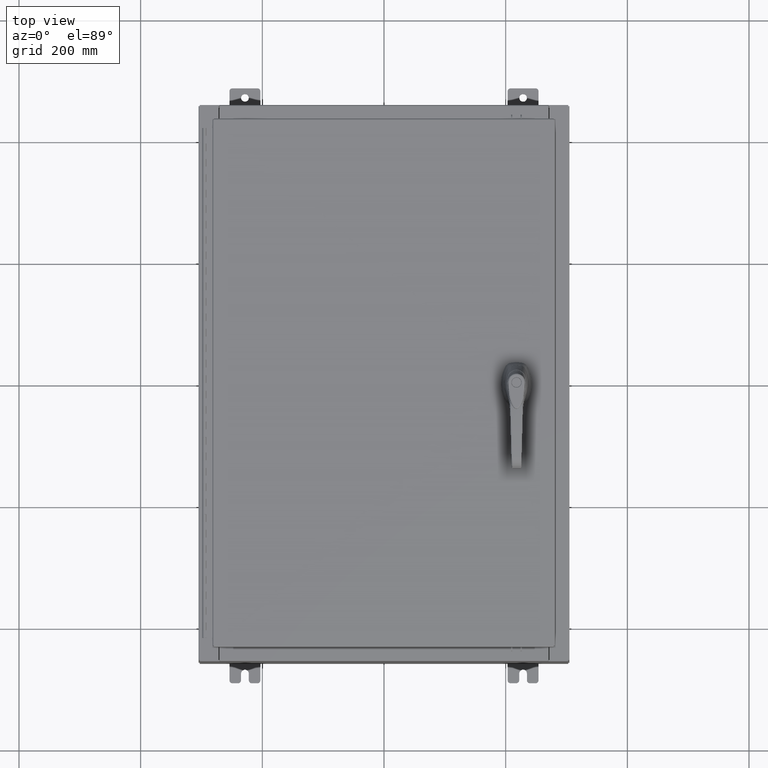
[diagram: clean part render]
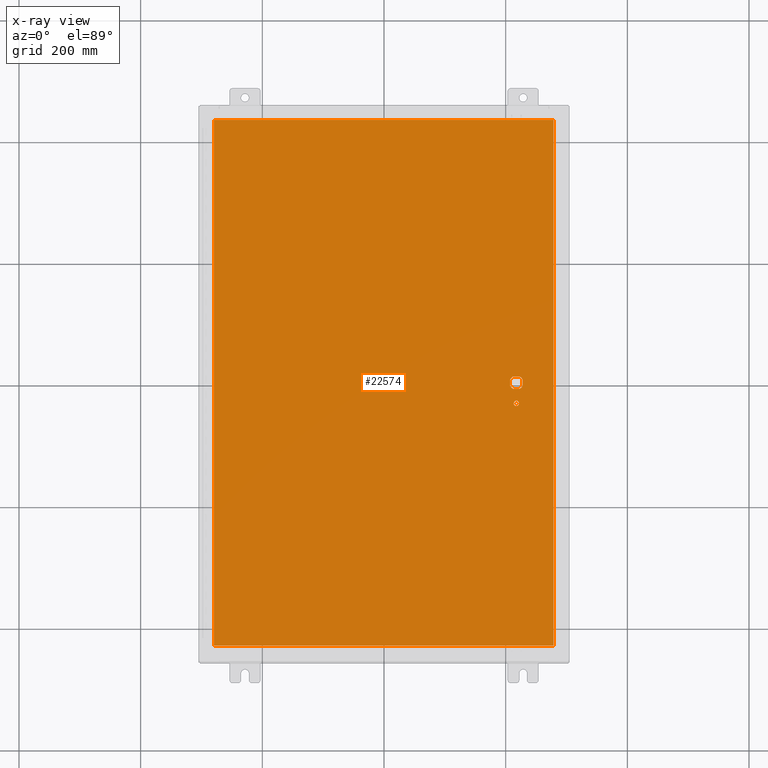
[diagram: x-ray — body ghosted, one internal face saturated and labeled with its STEP entity id]
A machine part, top view, then the same camera in x-ray: the body is ghosted and one INTERNAL B-rep face — a face not visible from any outside direction — is saturated and labeled: STEP entity #22574.
In plain terms, the highlighted planar face has unit normal (0, 0, -1).
Its self-contained STEP definition (entity closure, byte-faithful):
#187 = DIRECTION ( 'NONE',  ( -1.000000000000000000, 0.0000000000000000000, 0.0000000000000000000 ) ) ;
#859 = DIRECTION ( 'NONE',  ( -1.000000000000000000, 0.0000000000000000000, 0.0000000000000000000 ) ) ;
#1070 = CARTESIAN_POINT ( 'NONE',  ( 8.577999999999995900, 0.0000000000000000000, -0.07470000000000003000 ) ) ;
#1375 = CARTESIAN_POINT ( 'NONE',  ( 10.99029999999999600, -17.00629999999999600, -0.07470000000000000300 ) ) ;
#2779 = FACE_OUTER_BOUND ( 'NONE', #44563, .T. ) ;
#2887 = ORIENTED_EDGE ( 'NONE', *, *, #16530, .T. ) ;
#3648 = CARTESIAN_POINT ( 'NONE',  ( 8.778227370756305000, 0.4029999999999250300, -0.07470000000000003000 ) ) ;
#4593 = VECTOR ( 'NONE', #56795, 39.37007874015748100 ) ;
#7290 = CARTESIAN_POINT ( 'NONE',  ( -10.99030000000000100, 17.00630000000000700, -0.07470000000000000300 ) ) ;
#8626 = ORIENTED_EDGE ( 'NONE', *, *, #86477, .T. ) ;
#9822 = AXIS2_PLACEMENT_3D ( 'NONE', #28592, #113321, #56961 ) ;
#10533 = DIRECTION ( 'NONE',  ( -1.000000000000000000, 0.0000000000000000000, 0.0000000000000000000 ) ) ;
#12101 = VERTEX_POINT ( 'NONE', #3648 ) ;
#12111 = DIRECTION ( 'NONE',  ( -0.0000000000000000000, -0.0000000000000000000, 1.000000000000000000 ) ) ;
#12272 = EDGE_LOOP ( 'NONE', ( #8626, #68370 ) ) ;
#14278 = EDGE_CURVE ( 'NONE', #60904, #85435, #107620, .T. ) ;
#14323 = CARTESIAN_POINT ( 'NONE',  ( 8.749499999999997600, -1.338000000000000100, -0.07470000000000003000 ) ) ;
#14999 = VERTEX_POINT ( 'NONE', #47000 ) ;
#15895 = CARTESIAN_POINT ( 'NONE',  ( 8.980999999999921700, 0.2002273707563080300, -0.07470000000000003000 ) ) ;
#16115 = LINE ( 'NONE', #89413, #85265 ) ;
#16472 = CIRCLE ( 'NONE', #73002, 0.4499999999999156900 ) ;
#16530 = EDGE_CURVE ( 'NONE', #14999, #62472, #41845, .T. ) ;
#17802 = LINE ( 'NONE', #74622, #109044 ) ;
#20276 = CIRCLE ( 'NONE', #101046, 0.4499999999999156900 ) ;
#20655 = EDGE_CURVE ( 'NONE', #12101, #110338, #17802, .T. ) ;
#22541 = EDGE_LOOP ( 'NONE', ( #110010, #84547, #55774, #117965, #41820, #2887, #114568, #27658 ) ) ;
#22574 = ADVANCED_FACE ( 'NONE', ( #27815, #2779, #121966 ), #54943, .T. ) ;
#22736 = VERTEX_POINT ( 'NONE', #87362 ) ;
#25207 = CARTESIAN_POINT ( 'NONE',  ( -10.99030000000000500, 17.00630000000000700, -0.07470000000000347200 ) ) ;
#25753 = CARTESIAN_POINT ( 'NONE',  ( 8.778227370756305000, -0.4029999999999252000, -0.07470000000000003000 ) ) ;
#26978 = VERTEX_POINT ( 'NONE', #14323 ) ;
#26979 = AXIS2_PLACEMENT_3D ( 'NONE', #1070, #66864, #10533 ) ;
#27658 = ORIENTED_EDGE ( 'NONE', *, *, #14278, .T. ) ;
#27815 = FACE_BOUND ( 'NONE', #12272, .T. ) ;
#28592 = CARTESIAN_POINT ( 'NONE',  ( 0.0000000000000000000, 0.0000000000000000000, -0.07470000000000000300 ) ) ;
#29624 = LINE ( 'NONE', #47305, #4593 ) ;
#33518 = VECTOR ( 'NONE', #42788, 39.37007874015748100 ) ;
#35257 = CARTESIAN_POINT ( 'NONE',  ( 8.577999999999995900, 0.0000000000000000000, -0.07470000000000003000 ) ) ;
#36090 = CARTESIAN_POINT ( 'NONE',  ( 0.0000000000000000000, -0.4029999999999252000, -0.07470000000000003000 ) ) ;
#38361 = VECTOR ( 'NONE', #111385, 39.37007874015748100 ) ;
#38995 = EDGE_CURVE ( 'NONE', #85435, #90741, #74125, .T. ) ;
#40183 = DIRECTION ( 'NONE',  ( -0.0000000000000000000, -0.0000000000000000000, 1.000000000000000000 ) ) ;
#40570 = LINE ( 'NONE', #25207, #84713 ) ;
#41088 = EDGE_CURVE ( 'NONE', #62472, #60904, #16472, .T. ) ;
#41820 = ORIENTED_EDGE ( 'NONE', *, *, #74813, .T. ) ;
#41845 = LINE ( 'NONE', #45953, #116943 ) ;
#42788 = DIRECTION ( 'NONE',  ( 1.000000000000000000, -0.0000000000000000000, -0.0000000000000000000 ) ) ;
#43776 = EDGE_CURVE ( 'NONE', #99960, #22736, #16115, .T. ) ;
#44231 = ORIENTED_EDGE ( 'NONE', *, *, #43776, .F. ) ;
#44563 = EDGE_LOOP ( 'NONE', ( #44231, #96713, #110603, #120964 ) ) ;
#44722 = DIRECTION ( 'NONE',  ( -1.000000000000000000, 1.776356839400251300E-015, 0.0000000000000000000 ) ) ;
#45818 = CARTESIAN_POINT ( 'NONE',  ( 8.577999999999995900, 0.0000000000000000000, -0.07470000000000003000 ) ) ;
#45953 = CARTESIAN_POINT ( 'NONE',  ( 8.175000000000070000, 0.0000000000000000000, -0.07470000000000003000 ) ) ;
#46372 = CARTESIAN_POINT ( 'NONE',  ( -10.99030000000000000, -17.00629999999999600, -0.07470000000000000300 ) ) ;
#47000 = CARTESIAN_POINT ( 'NONE',  ( 8.175000000000070000, 0.2002273707563080300, -0.07470000000000003000 ) ) ;
#47305 = CARTESIAN_POINT ( 'NONE',  ( 8.980999999999921700, 2.450686610769031800E-014, -0.07470000000000003000 ) ) ;
#47456 = EDGE_CURVE ( 'NONE', #111205, #12101, #81981, .T. ) ;
#54943 = PLANE ( 'NONE',  #9822 ) ;
#54993 = VERTEX_POINT ( 'NONE', #113537 ) ;
#55311 = DIRECTION ( 'NONE',  ( -1.000000000000000000, 8.881784197001256300E-016, 0.0000000000000000000 ) ) ;
#55774 = ORIENTED_EDGE ( 'NONE', *, *, #47456, .T. ) ;
#56795 = DIRECTION ( 'NONE',  ( 2.728745808672812900E-015, -1.000000000000000000, 0.0000000000000000000 ) ) ;
#56961 = DIRECTION ( 'NONE',  ( -1.000000000000000000, 0.0000000000000000000, -0.0000000000000000000 ) ) ;
#57068 = VECTOR ( 'NONE', #101109, 39.37007874015748100 ) ;
#57204 = DIRECTION ( 'NONE',  ( -0.0000000000000000000, -0.0000000000000000000, 1.000000000000000000 ) ) ;
#59273 = VERTEX_POINT ( 'NONE', #7290 ) ;
#59501 = AXIS2_PLACEMENT_3D ( 'NONE', #35257, #101121, #44722 ) ;
#60904 = VERTEX_POINT ( 'NONE', #83481 ) ;
#62472 = VERTEX_POINT ( 'NONE', #110009 ) ;
#63200 = CARTESIAN_POINT ( 'NONE',  ( 10.99029999999999800, 17.00630000000000700, -0.07470000000000019700 ) ) ;
#64389 = LINE ( 'NONE', #70743, #33518 ) ;
#64840 = DIRECTION ( 'NONE',  ( 0.0000000000000000000, -1.000000000000000000, 0.0000000000000000000 ) ) ;
#65611 = EDGE_CURVE ( 'NONE', #54993, #26978, #76721, .T. ) ;
#66864 = DIRECTION ( 'NONE',  ( -0.0000000000000000000, -0.0000000000000000000, 1.000000000000000000 ) ) ;
#68370 = ORIENTED_EDGE ( 'NONE', *, *, #65611, .T. ) ;
#68429 = CARTESIAN_POINT ( 'NONE',  ( 8.577999999999995900, 0.0000000000000000000, -0.07470000000000003000 ) ) ;
#70743 = CARTESIAN_POINT ( 'NONE',  ( -10.99030000000000000, -17.00629999999999600, -0.07470000000000019700 ) ) ;
#71145 = EDGE_CURVE ( 'NONE', #22736, #59273, #107177, .T. ) ;
#73002 = AXIS2_PLACEMENT_3D ( 'NONE', #45818, #111665, #55311 ) ;
#74125 = CIRCLE ( 'NONE', #59501, 0.4499999999999156900 ) ;
#74622 = CARTESIAN_POINT ( 'NONE',  ( 0.0000000000000000000, 0.4029999999999252000, -0.07470000000000003000 ) ) ;
#74813 = EDGE_CURVE ( 'NONE', #110338, #14999, #20276, .T. ) ;
#75151 = AXIS2_PLACEMENT_3D ( 'NONE', #113574, #57204, #859 ) ;
#76721 = CIRCLE ( 'NONE', #75151, 0.1715000000000011500 ) ;
#77841 = DIRECTION ( 'NONE',  ( -1.000000000000000000, 0.0000000000000000000, 0.0000000000000000000 ) ) ;
#81981 = CIRCLE ( 'NONE', #26979, 0.4499999999999156900 ) ;
#83481 = CARTESIAN_POINT ( 'NONE',  ( 8.377772629243686700, -0.4029999999999250300, -0.07470000000000003000 ) ) ;
#84547 = ORIENTED_EDGE ( 'NONE', *, *, #102805, .F. ) ;
#84713 = VECTOR ( 'NONE', #118970, 39.37007874015748100 ) ;
#85265 = VECTOR ( 'NONE', #98883, 39.37007874015748100 ) ;
#85435 = VERTEX_POINT ( 'NONE', #25753 ) ;
#86477 = EDGE_CURVE ( 'NONE', #26978, #54993, #90089, .T. ) ;
#87362 = CARTESIAN_POINT ( 'NONE',  ( 10.99029999999999600, 17.00630000000000700, -0.07470000000000000300 ) ) ;
#88860 = CARTESIAN_POINT ( 'NONE',  ( 8.377772629243686700, 0.4029999999999252000, -0.07470000000000003000 ) ) ;
#89413 = CARTESIAN_POINT ( 'NONE',  ( 10.99029999999999600, -17.00629999999999200, -0.07470000000000019700 ) ) ;
#90089 = CIRCLE ( 'NONE', #119731, 0.1715000000000011500 ) ;
#90741 = VERTEX_POINT ( 'NONE', #118934 ) ;
#96090 = VERTEX_POINT ( 'NONE', #46372 ) ;
#96583 = CARTESIAN_POINT ( 'NONE',  ( 8.577999999999995900, -1.338000000000000100, -0.07470000000000003000 ) ) ;
#96713 = ORIENTED_EDGE ( 'NONE', *, *, #107626, .F. ) ;
#98050 = EDGE_CURVE ( 'NONE', #59273, #96090, #40570, .T. ) ;
#98883 = DIRECTION ( 'NONE',  ( 0.0000000000000000000, 1.000000000000000000, 0.0000000000000000000 ) ) ;
#99960 = VERTEX_POINT ( 'NONE', #1375 ) ;
#101046 = AXIS2_PLACEMENT_3D ( 'NONE', #68429, #12111, #77841 ) ;
#101109 = DIRECTION ( 'NONE',  ( -1.000000000000000000, -0.0000000000000000000, -0.0000000000000000000 ) ) ;
#101121 = DIRECTION ( 'NONE',  ( -0.0000000000000000000, -0.0000000000000000000, 1.000000000000000000 ) ) ;
#102805 = EDGE_CURVE ( 'NONE', #111205, #90741, #29624, .T. ) ;
#106054 = DIRECTION ( 'NONE',  ( -1.000000000000000000, 0.0000000000000000000, 0.0000000000000000000 ) ) ;
#107177 = LINE ( 'NONE', #63200, #57068 ) ;
#107620 = LINE ( 'NONE', #36090, #38361 ) ;
#107626 = EDGE_CURVE ( 'NONE', #96090, #99960, #64389, .T. ) ;
#109044 = VECTOR ( 'NONE', #187, 39.37007874015748100 ) ;
#110009 = CARTESIAN_POINT ( 'NONE',  ( 8.175000000000070000, -0.2002273707563079800, -0.07470000000000003000 ) ) ;
#110010 = ORIENTED_EDGE ( 'NONE', *, *, #38995, .T. ) ;
#110338 = VERTEX_POINT ( 'NONE', #88860 ) ;
#110603 = ORIENTED_EDGE ( 'NONE', *, *, #98050, .F. ) ;
#111205 = VERTEX_POINT ( 'NONE', #15895 ) ;
#111385 = DIRECTION ( 'NONE',  ( 1.000000000000000000, 0.0000000000000000000, 0.0000000000000000000 ) ) ;
#111665 = DIRECTION ( 'NONE',  ( -0.0000000000000000000, -0.0000000000000000000, 1.000000000000000000 ) ) ;
#113321 = DIRECTION ( 'NONE',  ( 0.0000000000000000000, 0.0000000000000000000, -1.000000000000000000 ) ) ;
#113537 = CARTESIAN_POINT ( 'NONE',  ( 8.406499999999994100, -1.338000000000000100, -0.07470000000000003000 ) ) ;
#113574 = CARTESIAN_POINT ( 'NONE',  ( 8.577999999999995900, -1.338000000000000100, -0.07470000000000003000 ) ) ;
#114568 = ORIENTED_EDGE ( 'NONE', *, *, #41088, .T. ) ;
#116943 = VECTOR ( 'NONE', #64840, 39.37007874015748100 ) ;
#117965 = ORIENTED_EDGE ( 'NONE', *, *, #20655, .T. ) ;
#118934 = CARTESIAN_POINT ( 'NONE',  ( 8.980999999999921700, -0.2002273707563075900, -0.07470000000000003000 ) ) ;
#118970 = DIRECTION ( 'NONE',  ( 0.0000000000000000000, -1.000000000000000000, 0.0000000000000000000 ) ) ;
#119731 = AXIS2_PLACEMENT_3D ( 'NONE', #96583, #40183, #106054 ) ;
#120964 = ORIENTED_EDGE ( 'NONE', *, *, #71145, .F. ) ;
#121966 = FACE_BOUND ( 'NONE', #22541, .T. ) ;